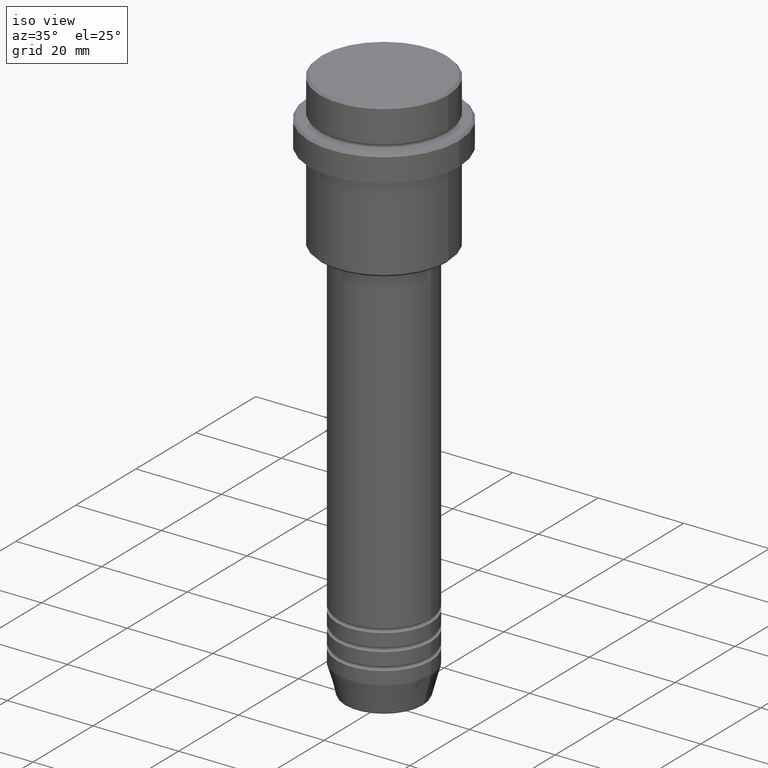
[diagram: clean part render]
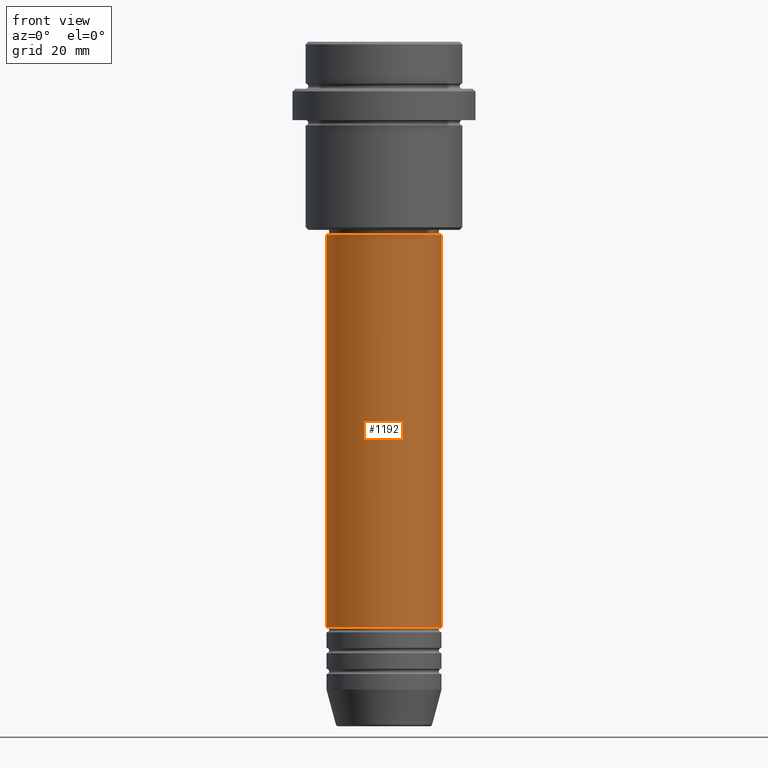
[diagram: tour spotlight — one face highlighted and labeled with its STEP entity id]
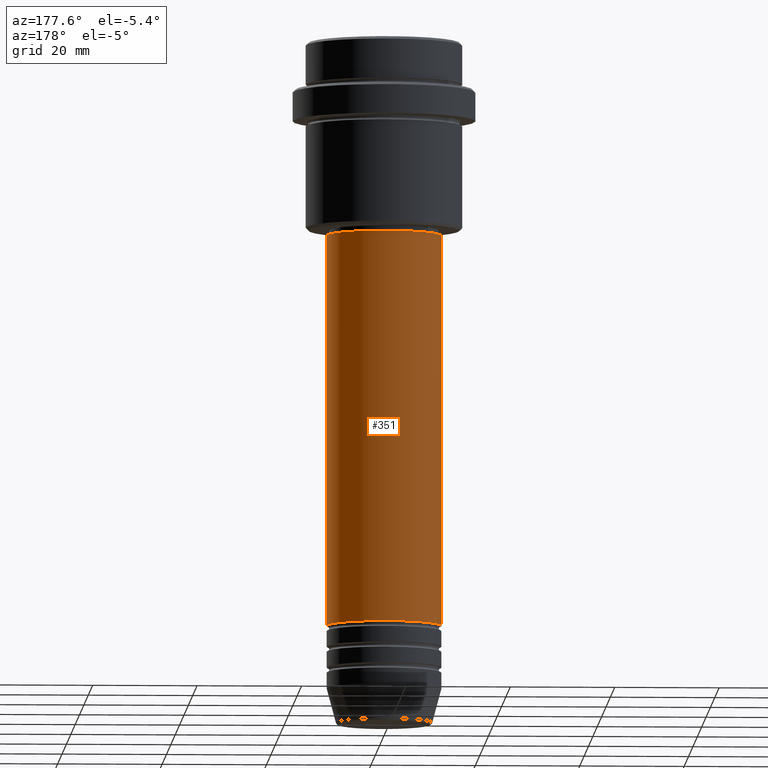
[diagram: tour spotlight — one face highlighted and labeled with its STEP entity id]
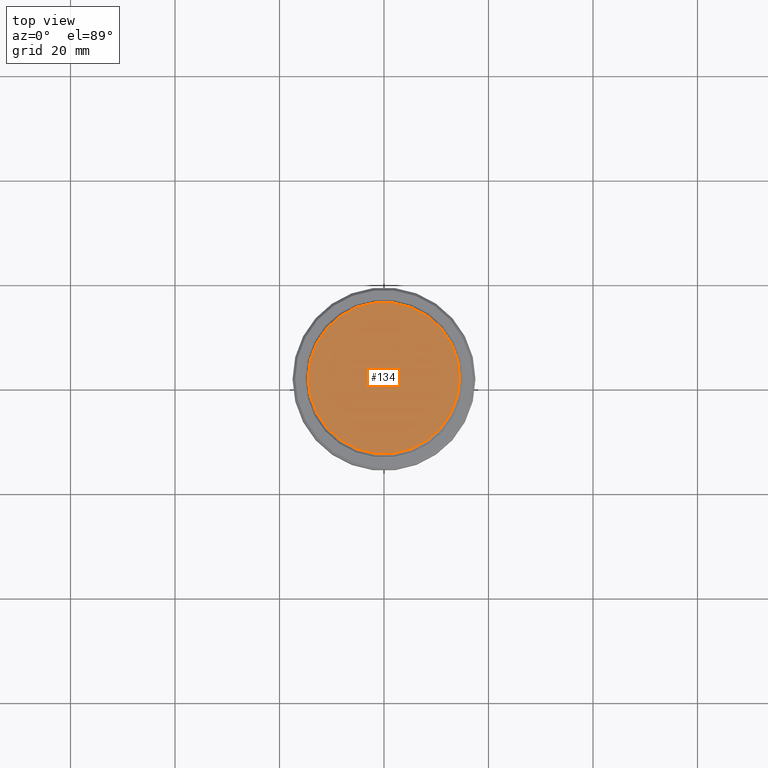
[diagram: tour spotlight — one face highlighted and labeled with its STEP entity id]
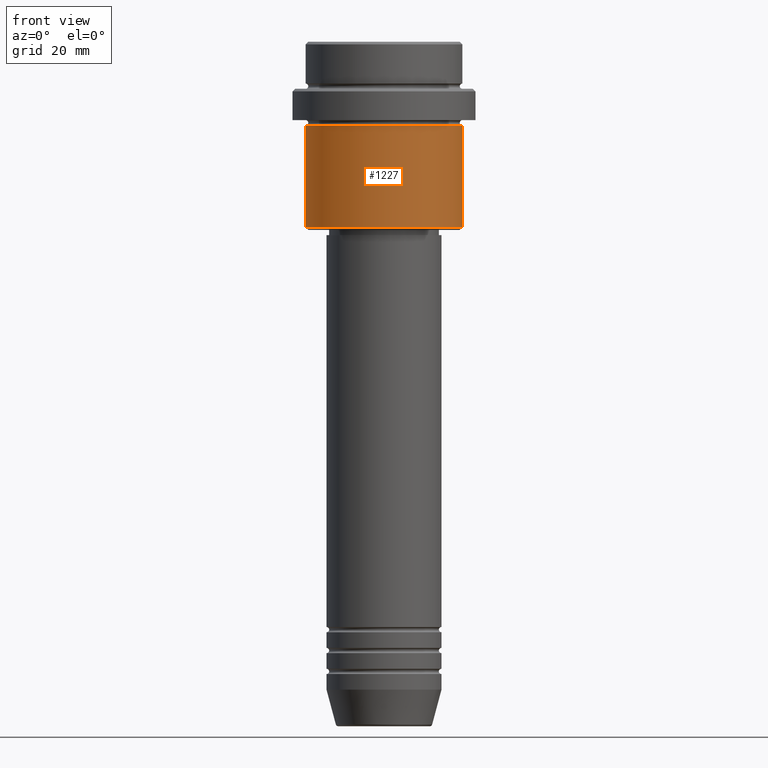
[diagram: tour spotlight — one face highlighted and labeled with its STEP entity id]
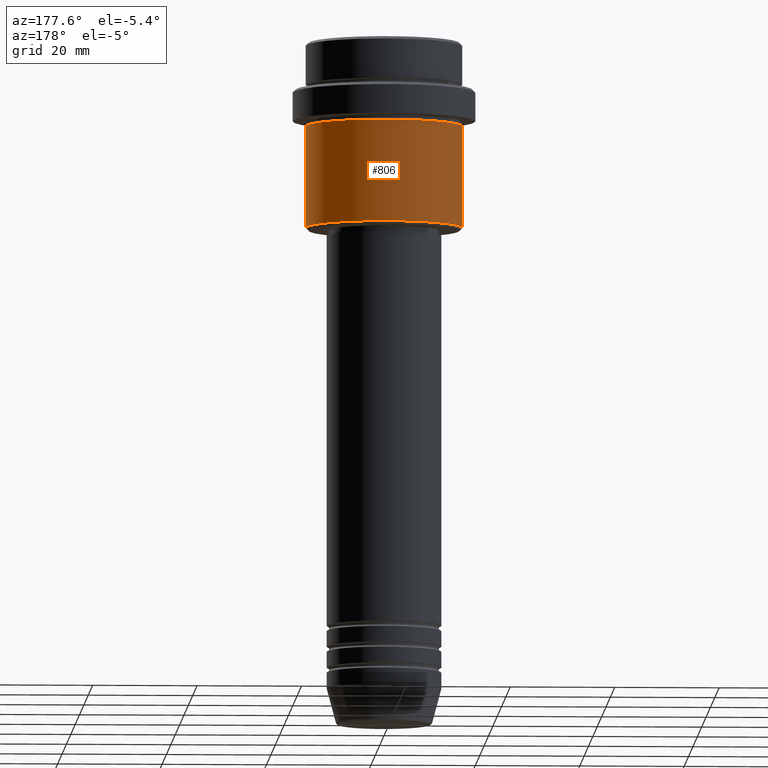
[diagram: tour spotlight — one face highlighted and labeled with its STEP entity id]
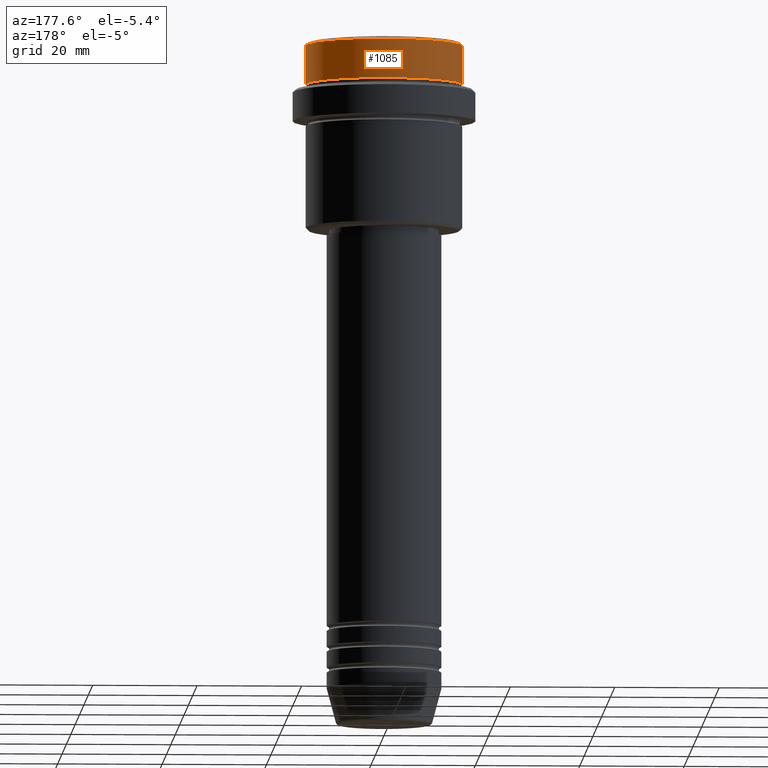
[diagram: tour spotlight — one face highlighted and labeled with its STEP entity id]
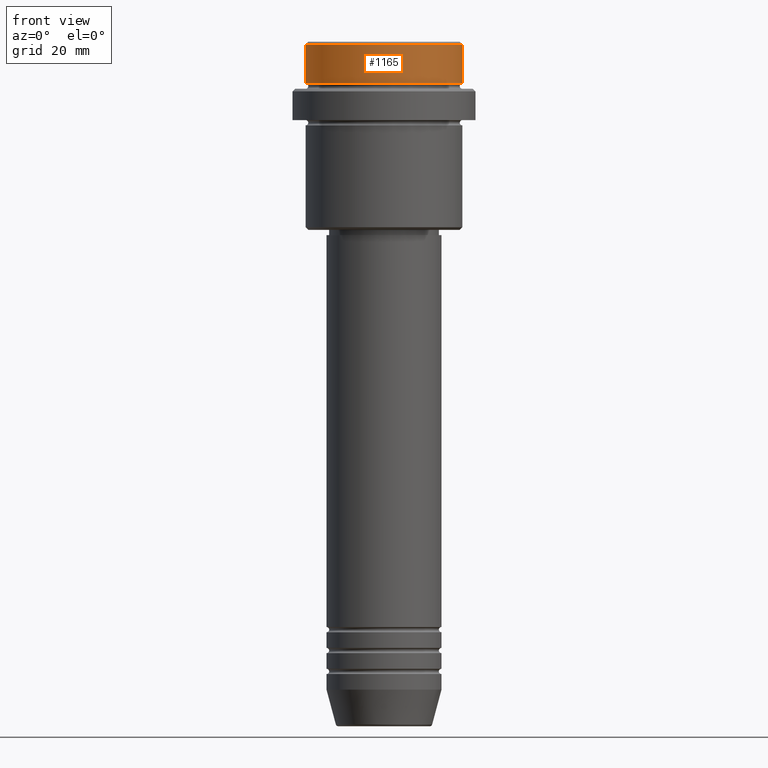
[diagram: tour spotlight — one face highlighted and labeled with its STEP entity id]
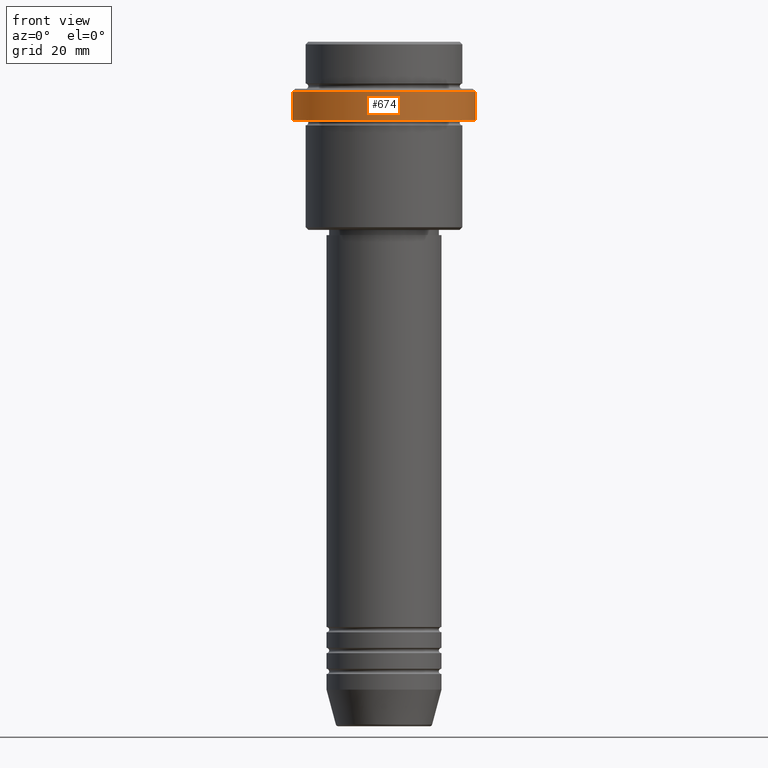
[diagram: tour spotlight — one face highlighted and labeled with its STEP entity id]
A machine part: a face-by-face anatomy tour. The part has 52 B-rep faces; the first image is the clean iso view, then the 8 largest visible faces are spotlighted one at a time (largest first), each with its STEP entity span.

Face 1 — front view, entity #1192. In plain terms, the highlighted cylindrical surface (partial cylindrical patch) has radius 11 mm, axis along (-0, -0, 1).
Definition (entity closure, byte-faithful):
#10 = AXIS2_PLACEMENT_3D ( 'NONE', #1251, #514, #166 ) ;
#36 = CARTESIAN_POINT ( 'NONE',  ( -11.00000000000000000, 1.347111479062088405E-15, -111.9999999999998721 ) ) ;
#48 = EDGE_LOOP ( 'NONE', ( #162, #783, #821, #759 ) ) ;
#66 = EDGE_CURVE ( 'NONE', #117, #1316, #1311, .T. ) ;
#76 = DIRECTION ( 'NONE',  ( -0.000000000000000000, -0.000000000000000000, 1.000000000000000000 ) ) ;
#117 = VERTEX_POINT ( 'NONE', #36 ) ;
#154 = VECTOR ( 'NONE', #757, 1000.000000000000000 ) ;
#162 = ORIENTED_EDGE ( 'NONE', *, *, #1245, .F. ) ;
#166 = DIRECTION ( 'NONE',  ( 1.000000000000000000, 0.000000000000000000, 0.000000000000000000 ) ) ;
#298 = LINE ( 'NONE', #532, #154 ) ;
#305 = CARTESIAN_POINT ( 'NONE',  ( -10.99999999999999822, 1.347111479062088207E-15, -36.99999999999997158 ) ) ;
#387 = CYLINDRICAL_SURFACE ( 'NONE', #1117, 11.00000000000000000 ) ;
#481 = CIRCLE ( 'NONE', #10, 10.99999999999999822 ) ;
#514 = DIRECTION ( 'NONE',  ( -0.000000000000000000, -0.000000000000000000, 1.000000000000000000 ) ) ;
#532 = CARTESIAN_POINT ( 'NONE',  ( 11.00000000000000000, 0.000000000000000000, 0.000000000000000000 ) ) ;
#549 = LINE ( 'NONE', #973, #551 ) ;
#551 = VECTOR ( 'NONE', #1184, 1000.000000000000000 ) ;
#567 = CARTESIAN_POINT ( 'NONE',  ( 10.99999999999999822, 0.000000000000000000, -36.99999999999997158 ) ) ;
#578 = EDGE_CURVE ( 'NONE', #1012, #1412, #481, .T. ) ;
#631 = FACE_OUTER_BOUND ( 'NONE', #48, .T. ) ;
#647 = CARTESIAN_POINT ( 'NONE',  ( 0.000000000000000000, 0.000000000000000000, -111.9999999999998721 ) ) ;
#757 = DIRECTION ( 'NONE',  ( -0.000000000000000000, -0.000000000000000000, 1.000000000000000000 ) ) ;
#759 = ORIENTED_EDGE ( 'NONE', *, *, #578, .F. ) ;
#767 = DIRECTION ( 'NONE',  ( -0.000000000000000000, -0.000000000000000000, 1.000000000000000000 ) ) ;
#783 = ORIENTED_EDGE ( 'NONE', *, *, #66, .T. ) ;
#821 = ORIENTED_EDGE ( 'NONE', *, *, #867, .T. ) ;
#865 = AXIS2_PLACEMENT_3D ( 'NONE', #647, #767, #1200 ) ;
#867 = EDGE_CURVE ( 'NONE', #1316, #1412, #298, .T. ) ;
#973 = CARTESIAN_POINT ( 'NONE',  ( -11.00000000000000000, 1.347111479062088405E-15, 0.000000000000000000 ) ) ;
#1012 = VERTEX_POINT ( 'NONE', #305 ) ;
#1117 = AXIS2_PLACEMENT_3D ( 'NONE', #1387, #76, #1153 ) ;
#1153 = DIRECTION ( 'NONE',  ( 1.000000000000000000, 0.000000000000000000, 0.000000000000000000 ) ) ;
#1184 = DIRECTION ( 'NONE',  ( -0.000000000000000000, -0.000000000000000000, 1.000000000000000000 ) ) ;
#1192 = ADVANCED_FACE ( 'NONE', ( #631 ), #387, .T. ) ;
#1200 = DIRECTION ( 'NONE',  ( 1.000000000000000000, 0.000000000000000000, 0.000000000000000000 ) ) ;
#1210 = CARTESIAN_POINT ( 'NONE',  ( 11.00000000000000000, 0.000000000000000000, -111.9999999999998721 ) ) ;
#1245 = EDGE_CURVE ( 'NONE', #117, #1012, #549, .T. ) ;
#1251 = CARTESIAN_POINT ( 'NONE',  ( 0.000000000000000000, 0.000000000000000000, -36.99999999999997158 ) ) ;
#1311 = CIRCLE ( 'NONE', #865, 11.00000000000000000 ) ;
#1316 = VERTEX_POINT ( 'NONE', #1210 ) ;
#1387 = CARTESIAN_POINT ( 'NONE',  ( 0.000000000000000000, 0.000000000000000000, 0.000000000000000000 ) ) ;
#1412 = VERTEX_POINT ( 'NONE', #567 ) ;

Face 2 — auxiliary view, entity #351. In plain terms, the highlighted cylindrical surface (partial cylindrical patch) has radius 11 mm, axis along (-0, -0, 1).
Definition (entity closure, byte-faithful):
#5 = DIRECTION ( 'NONE',  ( 1.000000000000000000, 0.000000000000000000, 0.000000000000000000 ) ) ;
#9 = DIRECTION ( 'NONE',  ( 1.000000000000000000, 0.000000000000000000, 0.000000000000000000 ) ) ;
#36 = CARTESIAN_POINT ( 'NONE',  ( -11.00000000000000000, 1.347111479062088405E-15, -111.9999999999998721 ) ) ;
#40 = AXIS2_PLACEMENT_3D ( 'NONE', #320, #1180, #9 ) ;
#47 = FACE_OUTER_BOUND ( 'NONE', #1229, .T. ) ;
#55 = EDGE_CURVE ( 'NONE', #1412, #1012, #777, .T. ) ;
#68 = AXIS2_PLACEMENT_3D ( 'NONE', #910, #1130, #5 ) ;
#114 = ORIENTED_EDGE ( 'NONE', *, *, #867, .F. ) ;
#117 = VERTEX_POINT ( 'NONE', #36 ) ;
#154 = VECTOR ( 'NONE', #757, 1000.000000000000000 ) ;
#210 = ORIENTED_EDGE ( 'NONE', *, *, #1245, .T. ) ;
#298 = LINE ( 'NONE', #532, #154 ) ;
#305 = CARTESIAN_POINT ( 'NONE',  ( -10.99999999999999822, 1.347111479062088207E-15, -36.99999999999997158 ) ) ;
#320 = CARTESIAN_POINT ( 'NONE',  ( 0.000000000000000000, 0.000000000000000000, -36.99999999999997158 ) ) ;
#351 = ADVANCED_FACE ( 'NONE', ( #47 ), #803, .T. ) ;
#532 = CARTESIAN_POINT ( 'NONE',  ( 11.00000000000000000, 0.000000000000000000, 0.000000000000000000 ) ) ;
#548 = CIRCLE ( 'NONE', #960, 11.00000000000000000 ) ;
#549 = LINE ( 'NONE', #973, #551 ) ;
#551 = VECTOR ( 'NONE', #1184, 1000.000000000000000 ) ;
#567 = CARTESIAN_POINT ( 'NONE',  ( 10.99999999999999822, 0.000000000000000000, -36.99999999999997158 ) ) ;
#757 = DIRECTION ( 'NONE',  ( -0.000000000000000000, -0.000000000000000000, 1.000000000000000000 ) ) ;
#777 = CIRCLE ( 'NONE', #40, 10.99999999999999822 ) ;
#793 = DIRECTION ( 'NONE',  ( 1.000000000000000000, 0.000000000000000000, 0.000000000000000000 ) ) ;
#803 = CYLINDRICAL_SURFACE ( 'NONE', #68, 11.00000000000000000 ) ;
#867 = EDGE_CURVE ( 'NONE', #1316, #1412, #298, .T. ) ;
#900 = CARTESIAN_POINT ( 'NONE',  ( 0.000000000000000000, 0.000000000000000000, -111.9999999999998721 ) ) ;
#910 = CARTESIAN_POINT ( 'NONE',  ( 0.000000000000000000, 0.000000000000000000, 0.000000000000000000 ) ) ;
#947 = EDGE_CURVE ( 'NONE', #1316, #117, #548, .T. ) ;
#960 = AXIS2_PLACEMENT_3D ( 'NONE', #900, #1320, #793 ) ;
#973 = CARTESIAN_POINT ( 'NONE',  ( -11.00000000000000000, 1.347111479062088405E-15, 0.000000000000000000 ) ) ;
#999 = ORIENTED_EDGE ( 'NONE', *, *, #55, .F. ) ;
#1012 = VERTEX_POINT ( 'NONE', #305 ) ;
#1076 = ORIENTED_EDGE ( 'NONE', *, *, #947, .T. ) ;
#1130 = DIRECTION ( 'NONE',  ( -0.000000000000000000, -0.000000000000000000, 1.000000000000000000 ) ) ;
#1180 = DIRECTION ( 'NONE',  ( -0.000000000000000000, -0.000000000000000000, 1.000000000000000000 ) ) ;
#1184 = DIRECTION ( 'NONE',  ( -0.000000000000000000, -0.000000000000000000, 1.000000000000000000 ) ) ;
#1210 = CARTESIAN_POINT ( 'NONE',  ( 11.00000000000000000, 0.000000000000000000, -111.9999999999998721 ) ) ;
#1229 = EDGE_LOOP ( 'NONE', ( #1076, #210, #999, #114 ) ) ;
#1245 = EDGE_CURVE ( 'NONE', #117, #1012, #549, .T. ) ;
#1316 = VERTEX_POINT ( 'NONE', #1210 ) ;
#1320 = DIRECTION ( 'NONE',  ( -0.000000000000000000, -0.000000000000000000, 1.000000000000000000 ) ) ;
#1412 = VERTEX_POINT ( 'NONE', #567 ) ;

Face 3 — top view, entity #134. In plain terms, the highlighted planar face has unit normal (0, -0, 1).
Definition (entity closure, byte-faithful):
#56 = CARTESIAN_POINT ( 'NONE',  ( -14.49999999999999645, 0.000000000000000000, 0.000000000000000000 ) ) ;
#122 = CIRCLE ( 'NONE', #335, 14.49999999999999645 ) ;
#134 = ADVANCED_FACE ( 'NONE', ( #164 ), #264, .T. ) ;
#164 = FACE_OUTER_BOUND ( 'NONE', #1198, .T. ) ;
#182 = ORIENTED_EDGE ( 'NONE', *, *, #183, .T. ) ;
#183 = EDGE_CURVE ( 'NONE', #970, #519, #122, .T. ) ;
#264 = PLANE ( 'NONE',  #304 ) ;
#304 = AXIS2_PLACEMENT_3D ( 'NONE', #680, #809, #1231 ) ;
#319 = DIRECTION ( 'NONE',  ( -0.000000000000000000, -0.000000000000000000, 1.000000000000000000 ) ) ;
#335 = AXIS2_PLACEMENT_3D ( 'NONE', #1030, #931, #924 ) ;
#404 = CIRCLE ( 'NONE', #1376, 14.49999999999999645 ) ;
#519 = VERTEX_POINT ( 'NONE', #56 ) ;
#651 = CARTESIAN_POINT ( 'NONE',  ( 0.000000000000000000, 0.000000000000000000, 0.000000000000000000 ) ) ;
#675 = EDGE_CURVE ( 'NONE', #519, #970, #404, .T. ) ;
#680 = CARTESIAN_POINT ( 'NONE',  ( 0.000000000000000000, 0.000000000000000000, 0.000000000000000000 ) ) ;
#788 = ORIENTED_EDGE ( 'NONE', *, *, #675, .T. ) ;
#809 = DIRECTION ( 'NONE',  ( 0.000000000000000000, -0.000000000000000000, 1.000000000000000000 ) ) ;
#924 = DIRECTION ( 'NONE',  ( 1.000000000000000000, 0.000000000000000000, 0.000000000000000000 ) ) ;
#931 = DIRECTION ( 'NONE',  ( -0.000000000000000000, -0.000000000000000000, 1.000000000000000000 ) ) ;
#970 = VERTEX_POINT ( 'NONE', #1375 ) ;
#1030 = CARTESIAN_POINT ( 'NONE',  ( 0.000000000000000000, 0.000000000000000000, 0.000000000000000000 ) ) ;
#1198 = EDGE_LOOP ( 'NONE', ( #788, #182 ) ) ;
#1231 = DIRECTION ( 'NONE',  ( 1.000000000000000000, 0.000000000000000000, 0.000000000000000000 ) ) ;
#1290 = DIRECTION ( 'NONE',  ( 1.000000000000000000, 0.000000000000000000, 0.000000000000000000 ) ) ;
#1375 = CARTESIAN_POINT ( 'NONE',  ( 14.49999999999999645, 1.806354028742345802E-15, 0.000000000000000000 ) ) ;
#1376 = AXIS2_PLACEMENT_3D ( 'NONE', #651, #319, #1290 ) ;

Face 4 — front view, entity #1227. In plain terms, the highlighted cylindrical surface (partial cylindrical patch) has radius 15 mm, axis along (-0, -0, 1).
Definition (entity closure, byte-faithful):
#74 = VERTEX_POINT ( 'NONE', #1195 ) ;
#85 = ORIENTED_EDGE ( 'NONE', *, *, #724, .T. ) ;
#86 = AXIS2_PLACEMENT_3D ( 'NONE', #670, #449, #308 ) ;
#104 = VECTOR ( 'NONE', #1042, 1000.000000000000000 ) ;
#158 = CARTESIAN_POINT ( 'NONE',  ( 15.00000000000000000, 0.000000000000000000, 0.000000000000000000 ) ) ;
#241 = DIRECTION ( 'NONE',  ( -1.000000000000000000, 0.000000000000000000, 0.000000000000000000 ) ) ;
#242 = CIRCLE ( 'NONE', #888, 15.00000000000000000 ) ;
#258 = VERTEX_POINT ( 'NONE', #1265 ) ;
#260 = LINE ( 'NONE', #158, #104 ) ;
#297 = CYLINDRICAL_SURFACE ( 'NONE', #86, 15.00000000000000000 ) ;
#308 = DIRECTION ( 'NONE',  ( 1.000000000000000000, 0.000000000000000000, 0.000000000000000000 ) ) ;
#399 = FACE_OUTER_BOUND ( 'NONE', #1049, .T. ) ;
#401 = VERTEX_POINT ( 'NONE', #1001 ) ;
#422 = EDGE_CURVE ( 'NONE', #74, #401, #487, .T. ) ;
#449 = DIRECTION ( 'NONE',  ( -0.000000000000000000, -0.000000000000000000, 1.000000000000000000 ) ) ;
#475 = ORIENTED_EDGE ( 'NONE', *, *, #1350, .F. ) ;
#487 = LINE ( 'NONE', #1321, #887 ) ;
#507 = AXIS2_PLACEMENT_3D ( 'NONE', #1173, #1407, #1079 ) ;
#563 = CARTESIAN_POINT ( 'NONE',  ( 15.00000000000000000, 0.000000000000000000, -35.49999999999996447 ) ) ;
#588 = DIRECTION ( 'NONE',  ( -0.000000000000000000, -0.000000000000000000, 1.000000000000000000 ) ) ;
#643 = CIRCLE ( 'NONE', #507, 15.00000000000000178 ) ;
#670 = CARTESIAN_POINT ( 'NONE',  ( 0.000000000000000000, 0.000000000000000000, 0.000000000000000000 ) ) ;
#724 = EDGE_CURVE ( 'NONE', #74, #1232, #242, .T. ) ;
#881 = ORIENTED_EDGE ( 'NONE', *, *, #1318, .T. ) ;
#887 = VECTOR ( 'NONE', #928, 1000.000000000000000 ) ;
#888 = AXIS2_PLACEMENT_3D ( 'NONE', #998, #588, #241 ) ;
#928 = DIRECTION ( 'NONE',  ( -0.000000000000000000, -0.000000000000000000, 1.000000000000000000 ) ) ;
#998 = CARTESIAN_POINT ( 'NONE',  ( 0.000000000000000000, 0.000000000000000000, -35.49999999999996447 ) ) ;
#1001 = CARTESIAN_POINT ( 'NONE',  ( -15.00000000000000355, 1.836970198721029983E-15, -16.00000000000000000 ) ) ;
#1042 = DIRECTION ( 'NONE',  ( -0.000000000000000000, -0.000000000000000000, 1.000000000000000000 ) ) ;
#1049 = EDGE_LOOP ( 'NONE', ( #1345, #85, #881, #475 ) ) ;
#1079 = DIRECTION ( 'NONE',  ( 1.000000000000000000, 0.000000000000000000, 0.000000000000000000 ) ) ;
#1173 = CARTESIAN_POINT ( 'NONE',  ( 0.000000000000000000, 0.000000000000000000, -16.00000000000000000 ) ) ;
#1195 = CARTESIAN_POINT ( 'NONE',  ( -15.00000000000000000, 1.836970198721029589E-15, -35.49999999999996447 ) ) ;
#1227 = ADVANCED_FACE ( 'NONE', ( #399 ), #297, .T. ) ;
#1232 = VERTEX_POINT ( 'NONE', #563 ) ;
#1265 = CARTESIAN_POINT ( 'NONE',  ( 15.00000000000000178, 0.000000000000000000, -16.00000000000000000 ) ) ;
#1318 = EDGE_CURVE ( 'NONE', #1232, #258, #260, .T. ) ;
#1321 = CARTESIAN_POINT ( 'NONE',  ( -15.00000000000000000, 1.836970198721029589E-15, 0.000000000000000000 ) ) ;
#1345 = ORIENTED_EDGE ( 'NONE', *, *, #422, .F. ) ;
#1350 = EDGE_CURVE ( 'NONE', #401, #258, #643, .T. ) ;
#1407 = DIRECTION ( 'NONE',  ( -0.000000000000000000, -0.000000000000000000, 1.000000000000000000 ) ) ;

Face 5 — auxiliary view, entity #806. In plain terms, the highlighted cylindrical surface (partial cylindrical patch) has radius 15 mm, axis along (-0, -0, 1).
Definition (entity closure, byte-faithful):
#74 = VERTEX_POINT ( 'NONE', #1195 ) ;
#104 = VECTOR ( 'NONE', #1042, 1000.000000000000000 ) ;
#158 = CARTESIAN_POINT ( 'NONE',  ( 15.00000000000000000, 0.000000000000000000, 0.000000000000000000 ) ) ;
#172 = CARTESIAN_POINT ( 'NONE',  ( 0.000000000000000000, 0.000000000000000000, -16.00000000000000000 ) ) ;
#217 = AXIS2_PLACEMENT_3D ( 'NONE', #1154, #1264, #1161 ) ;
#258 = VERTEX_POINT ( 'NONE', #1265 ) ;
#260 = LINE ( 'NONE', #158, #104 ) ;
#283 = DIRECTION ( 'NONE',  ( 1.000000000000000000, 0.000000000000000000, 0.000000000000000000 ) ) ;
#394 = CYLINDRICAL_SURFACE ( 'NONE', #217, 15.00000000000000000 ) ;
#401 = VERTEX_POINT ( 'NONE', #1001 ) ;
#422 = EDGE_CURVE ( 'NONE', #74, #401, #487, .T. ) ;
#427 = AXIS2_PLACEMENT_3D ( 'NONE', #1083, #1293, #530 ) ;
#454 = EDGE_LOOP ( 'NONE', ( #1005, #559, #1086, #1023 ) ) ;
#487 = LINE ( 'NONE', #1321, #887 ) ;
#530 = DIRECTION ( 'NONE',  ( -1.000000000000000000, 0.000000000000000000, 0.000000000000000000 ) ) ;
#559 = ORIENTED_EDGE ( 'NONE', *, *, #422, .T. ) ;
#563 = CARTESIAN_POINT ( 'NONE',  ( 15.00000000000000000, 0.000000000000000000, -35.49999999999996447 ) ) ;
#628 = CIRCLE ( 'NONE', #1164, 15.00000000000000178 ) ;
#806 = ADVANCED_FACE ( 'NONE', ( #1371 ), #394, .T. ) ;
#887 = VECTOR ( 'NONE', #928, 1000.000000000000000 ) ;
#928 = DIRECTION ( 'NONE',  ( -0.000000000000000000, -0.000000000000000000, 1.000000000000000000 ) ) ;
#995 = EDGE_CURVE ( 'NONE', #1232, #74, #1179, .T. ) ;
#1001 = CARTESIAN_POINT ( 'NONE',  ( -15.00000000000000355, 1.836970198721029983E-15, -16.00000000000000000 ) ) ;
#1005 = ORIENTED_EDGE ( 'NONE', *, *, #995, .T. ) ;
#1023 = ORIENTED_EDGE ( 'NONE', *, *, #1318, .F. ) ;
#1042 = DIRECTION ( 'NONE',  ( -0.000000000000000000, -0.000000000000000000, 1.000000000000000000 ) ) ;
#1057 = DIRECTION ( 'NONE',  ( -0.000000000000000000, -0.000000000000000000, 1.000000000000000000 ) ) ;
#1083 = CARTESIAN_POINT ( 'NONE',  ( 0.000000000000000000, 0.000000000000000000, -35.49999999999996447 ) ) ;
#1086 = ORIENTED_EDGE ( 'NONE', *, *, #1215, .F. ) ;
#1154 = CARTESIAN_POINT ( 'NONE',  ( 0.000000000000000000, 0.000000000000000000, 0.000000000000000000 ) ) ;
#1161 = DIRECTION ( 'NONE',  ( 1.000000000000000000, 0.000000000000000000, 0.000000000000000000 ) ) ;
#1164 = AXIS2_PLACEMENT_3D ( 'NONE', #172, #1057, #283 ) ;
#1179 = CIRCLE ( 'NONE', #427, 15.00000000000000000 ) ;
#1195 = CARTESIAN_POINT ( 'NONE',  ( -15.00000000000000000, 1.836970198721029589E-15, -35.49999999999996447 ) ) ;
#1215 = EDGE_CURVE ( 'NONE', #258, #401, #628, .T. ) ;
#1232 = VERTEX_POINT ( 'NONE', #563 ) ;
#1264 = DIRECTION ( 'NONE',  ( -0.000000000000000000, -0.000000000000000000, 1.000000000000000000 ) ) ;
#1265 = CARTESIAN_POINT ( 'NONE',  ( 15.00000000000000178, 0.000000000000000000, -16.00000000000000000 ) ) ;
#1293 = DIRECTION ( 'NONE',  ( -0.000000000000000000, -0.000000000000000000, 1.000000000000000000 ) ) ;
#1318 = EDGE_CURVE ( 'NONE', #1232, #258, #260, .T. ) ;
#1321 = CARTESIAN_POINT ( 'NONE',  ( -15.00000000000000000, 1.836970198721029589E-15, 0.000000000000000000 ) ) ;
#1371 = FACE_OUTER_BOUND ( 'NONE', #454, .T. ) ;

Face 6 — auxiliary view, entity #1085. In plain terms, the highlighted cylindrical surface (partial cylindrical patch) has radius 15 mm, axis along (-0, -0, 1).
Definition (entity closure, byte-faithful):
#17 = VERTEX_POINT ( 'NONE', #313 ) ;
#99 = EDGE_CURVE ( 'NONE', #17, #186, #105, .T. ) ;
#105 = LINE ( 'NONE', #326, #1081 ) ;
#123 = DIRECTION ( 'NONE',  ( -0.000000000000000000, -0.000000000000000000, 1.000000000000000000 ) ) ;
#126 = CIRCLE ( 'NONE', #1011, 15.00000000000000000 ) ;
#175 = VERTEX_POINT ( 'NONE', #1324 ) ;
#186 = VERTEX_POINT ( 'NONE', #474 ) ;
#223 = CARTESIAN_POINT ( 'NONE',  ( 15.00000000000000000, 0.000000000000000000, 0.000000000000000000 ) ) ;
#289 = VECTOR ( 'NONE', #418, 1000.000000000000000 ) ;
#313 = CARTESIAN_POINT ( 'NONE',  ( -15.00000000000000000, 1.836970198721029589E-15, -7.999999999999998224 ) ) ;
#323 = ORIENTED_EDGE ( 'NONE', *, *, #99, .T. ) ;
#326 = CARTESIAN_POINT ( 'NONE',  ( -15.00000000000000000, 1.836970198721029589E-15, 0.000000000000000000 ) ) ;
#397 = DIRECTION ( 'NONE',  ( 0.000000000000000000, 0.000000000000000000, -1.000000000000000000 ) ) ;
#418 = DIRECTION ( 'NONE',  ( -0.000000000000000000, -0.000000000000000000, 1.000000000000000000 ) ) ;
#421 = ORIENTED_EDGE ( 'NONE', *, *, #1202, .T. ) ;
#474 = CARTESIAN_POINT ( 'NONE',  ( -15.00000000000000000, 1.836970198721029589E-15, -0.4999999999999970024 ) ) ;
#491 = DIRECTION ( 'NONE',  ( -0.000000000000000000, -0.000000000000000000, 1.000000000000000000 ) ) ;
#500 = DIRECTION ( 'NONE',  ( 1.000000000000000000, 0.000000000000000000, 0.000000000000000000 ) ) ;
#525 = EDGE_CURVE ( 'NONE', #186, #175, #1333, .T. ) ;
#560 = ORIENTED_EDGE ( 'NONE', *, *, #1120, .F. ) ;
#562 = CARTESIAN_POINT ( 'NONE',  ( 0.000000000000000000, 0.000000000000000000, 0.000000000000000000 ) ) ;
#619 = CARTESIAN_POINT ( 'NONE',  ( 0.000000000000000000, 0.000000000000000000, -0.4999999999999970024 ) ) ;
#721 = DIRECTION ( 'NONE',  ( 1.000000000000000000, 0.000000000000000000, 0.000000000000000000 ) ) ;
#818 = CARTESIAN_POINT ( 'NONE',  ( 15.00000000000000000, 0.000000000000000000, -7.999999999999998224 ) ) ;
#869 = AXIS2_PLACEMENT_3D ( 'NONE', #562, #491, #1047 ) ;
#903 = ORIENTED_EDGE ( 'NONE', *, *, #525, .T. ) ;
#1011 = AXIS2_PLACEMENT_3D ( 'NONE', #1270, #1067, #721 ) ;
#1047 = DIRECTION ( 'NONE',  ( 1.000000000000000000, 0.000000000000000000, 0.000000000000000000 ) ) ;
#1067 = DIRECTION ( 'NONE',  ( -0.000000000000000000, -0.000000000000000000, 1.000000000000000000 ) ) ;
#1081 = VECTOR ( 'NONE', #123, 1000.000000000000000 ) ;
#1085 = ADVANCED_FACE ( 'NONE', ( #1278 ), #1095, .T. ) ;
#1095 = CYLINDRICAL_SURFACE ( 'NONE', #869, 15.00000000000000000 ) ;
#1113 = EDGE_LOOP ( 'NONE', ( #421, #323, #903, #560 ) ) ;
#1120 = EDGE_CURVE ( 'NONE', #1303, #175, #1391, .T. ) ;
#1202 = EDGE_CURVE ( 'NONE', #1303, #17, #126, .T. ) ;
#1270 = CARTESIAN_POINT ( 'NONE',  ( 0.000000000000000000, 0.000000000000000000, -7.999999999999998224 ) ) ;
#1278 = FACE_OUTER_BOUND ( 'NONE', #1113, .T. ) ;
#1303 = VERTEX_POINT ( 'NONE', #818 ) ;
#1324 = CARTESIAN_POINT ( 'NONE',  ( 15.00000000000000000, 0.000000000000000000, -0.4999999999999970024 ) ) ;
#1333 = CIRCLE ( 'NONE', #1359, 15.00000000000000000 ) ;
#1359 = AXIS2_PLACEMENT_3D ( 'NONE', #619, #397, #500 ) ;
#1391 = LINE ( 'NONE', #223, #289 ) ;

Face 7 — front view, entity #1165. In plain terms, the highlighted cylindrical surface (partial cylindrical patch) has radius 15 mm, axis along (-0, -0, 1).
Definition (entity closure, byte-faithful):
#16 = CARTESIAN_POINT ( 'NONE',  ( 0.000000000000000000, 0.000000000000000000, -0.4999999999999970024 ) ) ;
#17 = VERTEX_POINT ( 'NONE', #313 ) ;
#20 = DIRECTION ( 'NONE',  ( -0.000000000000000000, -0.000000000000000000, 1.000000000000000000 ) ) ;
#99 = EDGE_CURVE ( 'NONE', #17, #186, #105, .T. ) ;
#105 = LINE ( 'NONE', #326, #1081 ) ;
#123 = DIRECTION ( 'NONE',  ( -0.000000000000000000, -0.000000000000000000, 1.000000000000000000 ) ) ;
#169 = EDGE_CURVE ( 'NONE', #17, #1303, #1032, .T. ) ;
#175 = VERTEX_POINT ( 'NONE', #1324 ) ;
#186 = VERTEX_POINT ( 'NONE', #474 ) ;
#220 = AXIS2_PLACEMENT_3D ( 'NONE', #16, #795, #1348 ) ;
#223 = CARTESIAN_POINT ( 'NONE',  ( 15.00000000000000000, 0.000000000000000000, 0.000000000000000000 ) ) ;
#289 = VECTOR ( 'NONE', #418, 1000.000000000000000 ) ;
#313 = CARTESIAN_POINT ( 'NONE',  ( -15.00000000000000000, 1.836970198721029589E-15, -7.999999999999998224 ) ) ;
#326 = CARTESIAN_POINT ( 'NONE',  ( -15.00000000000000000, 1.836970198721029589E-15, 0.000000000000000000 ) ) ;
#345 = CYLINDRICAL_SURFACE ( 'NONE', #1143, 15.00000000000000000 ) ;
#352 = DIRECTION ( 'NONE',  ( -0.000000000000000000, -0.000000000000000000, 1.000000000000000000 ) ) ;
#418 = DIRECTION ( 'NONE',  ( -0.000000000000000000, -0.000000000000000000, 1.000000000000000000 ) ) ;
#435 = EDGE_CURVE ( 'NONE', #175, #186, #448, .T. ) ;
#448 = CIRCLE ( 'NONE', #220, 15.00000000000000000 ) ;
#464 = DIRECTION ( 'NONE',  ( 1.000000000000000000, 0.000000000000000000, 0.000000000000000000 ) ) ;
#474 = CARTESIAN_POINT ( 'NONE',  ( -15.00000000000000000, 1.836970198721029589E-15, -0.4999999999999970024 ) ) ;
#650 = ORIENTED_EDGE ( 'NONE', *, *, #435, .T. ) ;
#699 = CARTESIAN_POINT ( 'NONE',  ( 0.000000000000000000, 0.000000000000000000, -7.999999999999998224 ) ) ;
#750 = ORIENTED_EDGE ( 'NONE', *, *, #99, .F. ) ;
#795 = DIRECTION ( 'NONE',  ( 0.000000000000000000, 0.000000000000000000, -1.000000000000000000 ) ) ;
#818 = CARTESIAN_POINT ( 'NONE',  ( 15.00000000000000000, 0.000000000000000000, -7.999999999999998224 ) ) ;
#927 = FACE_OUTER_BOUND ( 'NONE', #1297, .T. ) ;
#1022 = DIRECTION ( 'NONE',  ( 1.000000000000000000, 0.000000000000000000, 0.000000000000000000 ) ) ;
#1032 = CIRCLE ( 'NONE', #1199, 15.00000000000000000 ) ;
#1081 = VECTOR ( 'NONE', #123, 1000.000000000000000 ) ;
#1120 = EDGE_CURVE ( 'NONE', #1303, #175, #1391, .T. ) ;
#1143 = AXIS2_PLACEMENT_3D ( 'NONE', #1216, #352, #464 ) ;
#1165 = ADVANCED_FACE ( 'NONE', ( #927 ), #345, .T. ) ;
#1199 = AXIS2_PLACEMENT_3D ( 'NONE', #699, #20, #1022 ) ;
#1216 = CARTESIAN_POINT ( 'NONE',  ( 0.000000000000000000, 0.000000000000000000, 0.000000000000000000 ) ) ;
#1297 = EDGE_LOOP ( 'NONE', ( #750, #1415, #1356, #650 ) ) ;
#1303 = VERTEX_POINT ( 'NONE', #818 ) ;
#1324 = CARTESIAN_POINT ( 'NONE',  ( 15.00000000000000000, 0.000000000000000000, -0.4999999999999970024 ) ) ;
#1348 = DIRECTION ( 'NONE',  ( 1.000000000000000000, 0.000000000000000000, 0.000000000000000000 ) ) ;
#1356 = ORIENTED_EDGE ( 'NONE', *, *, #1120, .T. ) ;
#1391 = LINE ( 'NONE', #223, #289 ) ;
#1415 = ORIENTED_EDGE ( 'NONE', *, *, #169, .T. ) ;

Face 8 — front view, entity #674. In plain terms, the highlighted cylindrical surface (partial cylindrical patch) has radius 17.5 mm, axis along (-0, -0, 1).
Definition (entity closure, byte-faithful):
#2 = CARTESIAN_POINT ( 'NONE',  ( 17.50000000000000000, 0.000000000000000000, -9.500000000000001776 ) ) ;
#127 = AXIS2_PLACEMENT_3D ( 'NONE', #969, #174, #992 ) ;
#174 = DIRECTION ( 'NONE',  ( 0.000000000000000000, 0.000000000000000000, -1.000000000000000000 ) ) ;
#205 = VERTEX_POINT ( 'NONE', #482 ) ;
#292 = EDGE_CURVE ( 'NONE', #673, #205, #962, .T. ) ;
#301 = CARTESIAN_POINT ( 'NONE',  ( 0.000000000000000000, 0.000000000000000000, 0.000000000000000000 ) ) ;
#339 = CARTESIAN_POINT ( 'NONE',  ( 17.50000000000000000, 0.000000000000000000, 0.000000000000000000 ) ) ;
#374 = EDGE_CURVE ( 'NONE', #673, #541, #574, .T. ) ;
#440 = DIRECTION ( 'NONE',  ( -0.000000000000000000, -0.000000000000000000, 1.000000000000000000 ) ) ;
#451 = DIRECTION ( 'NONE',  ( -0.000000000000000000, -0.000000000000000000, 1.000000000000000000 ) ) ;
#466 = EDGE_LOOP ( 'NONE', ( #929, #884, #1060, #1142 ) ) ;
#482 = CARTESIAN_POINT ( 'NONE',  ( 17.50000000000000000, 0.000000000000000000, -15.00000000000000178 ) ) ;
#503 = VECTOR ( 'NONE', #1036, 1000.000000000000000 ) ;
#541 = VERTEX_POINT ( 'NONE', #742 ) ;
#565 = LINE ( 'NONE', #339, #808 ) ;
#574 = LINE ( 'NONE', #601, #503 ) ;
#601 = CARTESIAN_POINT ( 'NONE',  ( -17.50000000000000000, 2.143131898507868248E-15, 0.000000000000000000 ) ) ;
#673 = VERTEX_POINT ( 'NONE', #825 ) ;
#674 = ADVANCED_FACE ( 'NONE', ( #1249 ), #708, .T. ) ;
#708 = CYLINDRICAL_SURFACE ( 'NONE', #1221, 17.50000000000000000 ) ;
#742 = CARTESIAN_POINT ( 'NONE',  ( -17.50000000000000000, 2.143131898507868248E-15, -9.500000000000001776 ) ) ;
#749 = DIRECTION ( 'NONE',  ( 1.000000000000000000, 0.000000000000000000, 0.000000000000000000 ) ) ;
#758 = CARTESIAN_POINT ( 'NONE',  ( 0.000000000000000000, 0.000000000000000000, -15.00000000000000178 ) ) ;
#808 = VECTOR ( 'NONE', #451, 1000.000000000000000 ) ;
#825 = CARTESIAN_POINT ( 'NONE',  ( -17.50000000000000000, 2.143131898507868248E-15, -15.00000000000000178 ) ) ;
#870 = CIRCLE ( 'NONE', #127, 17.50000000000000000 ) ;
#884 = ORIENTED_EDGE ( 'NONE', *, *, #292, .T. ) ;
#929 = ORIENTED_EDGE ( 'NONE', *, *, #374, .F. ) ;
#962 = CIRCLE ( 'NONE', #1075, 17.50000000000000000 ) ;
#969 = CARTESIAN_POINT ( 'NONE',  ( 0.000000000000000000, 0.000000000000000000, -9.500000000000001776 ) ) ;
#992 = DIRECTION ( 'NONE',  ( 1.000000000000000000, 0.000000000000000000, 0.000000000000000000 ) ) ;
#1036 = DIRECTION ( 'NONE',  ( -0.000000000000000000, -0.000000000000000000, 1.000000000000000000 ) ) ;
#1060 = ORIENTED_EDGE ( 'NONE', *, *, #1128, .T. ) ;
#1075 = AXIS2_PLACEMENT_3D ( 'NONE', #758, #1388, #749 ) ;
#1087 = DIRECTION ( 'NONE',  ( 1.000000000000000000, 0.000000000000000000, 0.000000000000000000 ) ) ;
#1128 = EDGE_CURVE ( 'NONE', #205, #1243, #565, .T. ) ;
#1142 = ORIENTED_EDGE ( 'NONE', *, *, #1390, .T. ) ;
#1221 = AXIS2_PLACEMENT_3D ( 'NONE', #301, #440, #1087 ) ;
#1243 = VERTEX_POINT ( 'NONE', #2 ) ;
#1249 = FACE_OUTER_BOUND ( 'NONE', #466, .T. ) ;
#1388 = DIRECTION ( 'NONE',  ( -0.000000000000000000, -0.000000000000000000, 1.000000000000000000 ) ) ;
#1390 = EDGE_CURVE ( 'NONE', #1243, #541, #870, .T. ) ;